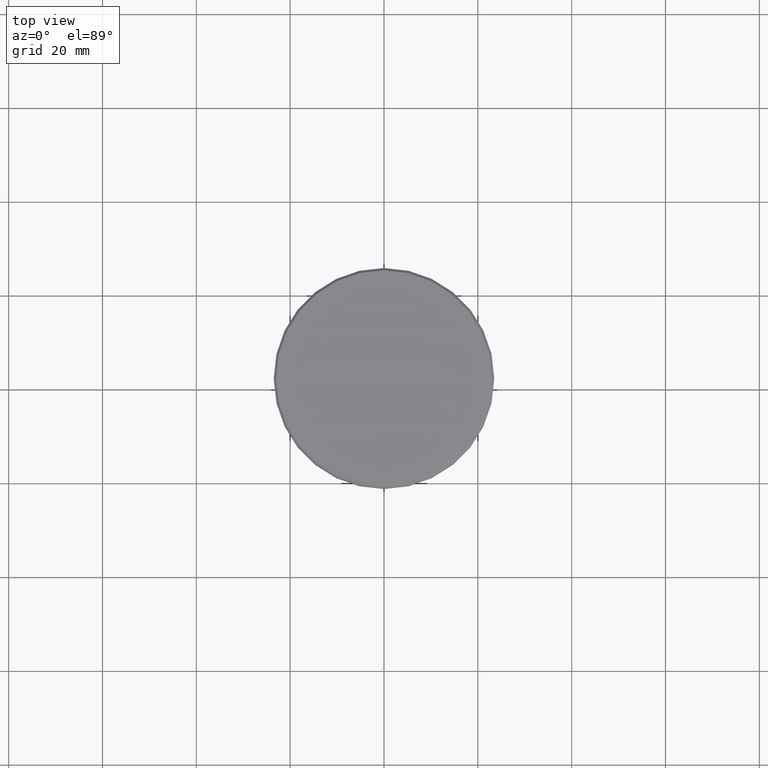
[diagram: clean part render]
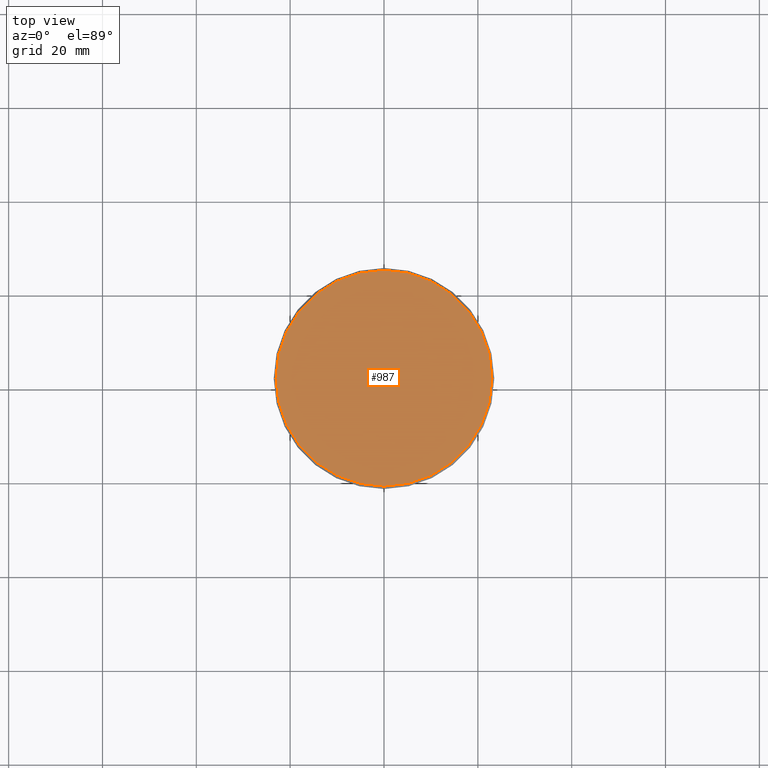
[diagram: same view with one face highlighted and labeled with its STEP entity id]
A machine part, top view. The second image highlights one B-rep face of the part: STEP entity #987.
In plain terms, the highlighted planar face has unit normal (0, -0, 1).
Its self-contained STEP definition (entity closure, byte-faithful):
#75 = CIRCLE ( 'NONE', #606, 23.00000000000002487 ) ;
#105 = FACE_OUTER_BOUND ( 'NONE', #977, .T. ) ;
#113 = CIRCLE ( 'NONE', #756, 23.00000000000002487 ) ;
#180 = DIRECTION ( 'NONE',  ( -0.000000000000000000, -0.000000000000000000, 1.000000000000000000 ) ) ;
#195 = DIRECTION ( 'NONE',  ( 1.000000000000000000, 0.000000000000000000, 0.000000000000000000 ) ) ;
#275 = DIRECTION ( 'NONE',  ( 1.000000000000000000, 0.000000000000000000, 0.000000000000000000 ) ) ;
#292 = CARTESIAN_POINT ( 'NONE',  ( -23.00000000000002487, 0.000000000000000000, 0.000000000000000000 ) ) ;
#304 = ORIENTED_EDGE ( 'NONE', *, *, #530, .T. ) ;
#328 = VERTEX_POINT ( 'NONE', #1012 ) ;
#394 = ORIENTED_EDGE ( 'NONE', *, *, #470, .T. ) ;
#404 = DIRECTION ( 'NONE',  ( -0.000000000000000000, -0.000000000000000000, 1.000000000000000000 ) ) ;
#453 = DIRECTION ( 'NONE',  ( 0.000000000000000000, -0.000000000000000000, 1.000000000000000000 ) ) ;
#470 = EDGE_CURVE ( 'NONE', #1142, #328, #75, .T. ) ;
#488 = CARTESIAN_POINT ( 'NONE',  ( 0.000000000000000000, 0.000000000000000000, 0.000000000000000000 ) ) ;
#530 = EDGE_CURVE ( 'NONE', #328, #1142, #113, .T. ) ;
#606 = AXIS2_PLACEMENT_3D ( 'NONE', #488, #404, #671 ) ;
#671 = DIRECTION ( 'NONE',  ( 1.000000000000000000, 0.000000000000000000, 0.000000000000000000 ) ) ;
#711 = PLANE ( 'NONE',  #945 ) ;
#722 = CARTESIAN_POINT ( 'NONE',  ( 0.000000000000000000, 0.000000000000000000, 0.000000000000000000 ) ) ;
#756 = AXIS2_PLACEMENT_3D ( 'NONE', #722, #180, #195 ) ;
#945 = AXIS2_PLACEMENT_3D ( 'NONE', #974, #453, #275 ) ;
#974 = CARTESIAN_POINT ( 'NONE',  ( 0.000000000000000000, 0.000000000000000000, 0.000000000000000000 ) ) ;
#977 = EDGE_LOOP ( 'NONE', ( #394, #304 ) ) ;
#987 = ADVANCED_FACE ( 'NONE', ( #105 ), #711, .T. ) ;
#1012 = CARTESIAN_POINT ( 'NONE',  ( 23.00000000000002487, 2.847303808017597717E-15, 0.000000000000000000 ) ) ;
#1142 = VERTEX_POINT ( 'NONE', #292 ) ;